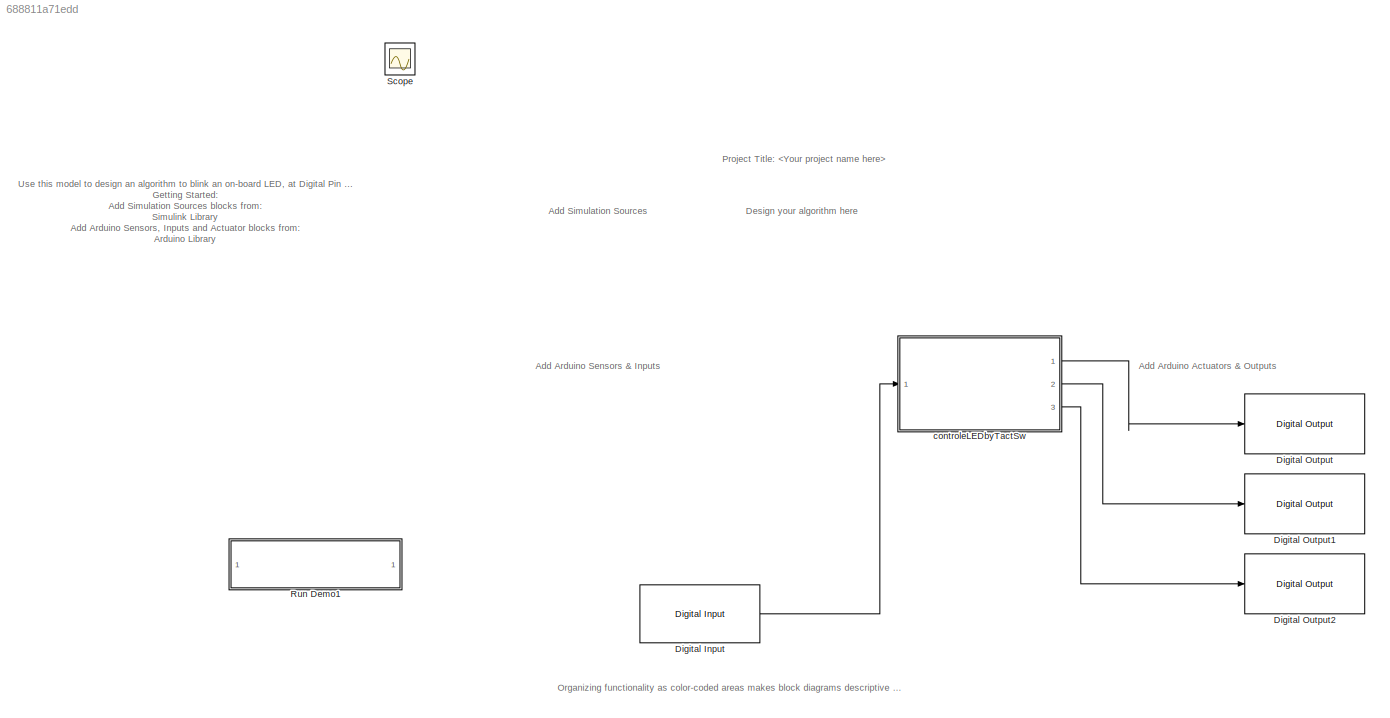
MODEL slx_688811a71edd
KIND model
CONFIG AbsTol = auto
CONFIG EnableMultiTasking = on
CONFIG FixedStep = auto
CONFIG MaxStep = auto
CONFIG MinStep = auto
CONFIG RelTol = 1e-3
CONFIG SampleTimeConstraint = Unconstrained
CONFIG SolverName = ode45
CONFIG StartTime = 0.0
CONFIG StopTime = 10.0
BLOCK [Reference] Digital Input  REF=arduinolib/Digital Input
  Commented = on
  Ports = [0, 1]
  SourceBlock = arduinolib/Digital Input
  SourceProductBaseCode = ARDUINO
  SourceType = Arduino Digital Input
BLOCK [Reference] Digital Output  REF=arduinolib/Digital Output
  Commented = on
  Ports = [1]
  SourceBlock = arduinolib/Digital Output
  SourceProductName = Simulink Support Package for Arduino Hardware
  SourceType = Arduino Digital Output
BLOCK [Reference] Digital Output1  REF=arduinolib/Digital Output
  Commented = on
  Ports = [1]
  SourceBlock = arduinolib/Digital Output
  SourceProductName = Simulink Support Package for Arduino Hardware
  SourceType = Arduino Digital Output
BLOCK [Reference] Digital Output2  REF=arduinolib/Digital Output
  Commented = on
  Ports = [1]
  SourceBlock = arduinolib/Digital Output
  SourceProductName = Simulink Support Package for Arduino Hardware
  SourceType = Arduino Digital Output
BLOCK [SubSystem] Run Demo1
  Description = Controls host-side RTDX processing.
  Ports = []
  RequestExecContextInheritance = off
  ShowPortLabels = none
  UserDataPersistent = on
BLOCK [Scope] Scope
  Floating = off
  IOType = viewer
  NumInputPorts = 1
  Ports = []
  ScopeSpecificationString = Simulink.scopes.TimeScopeBlockCfg('CurrentConfiguration', extmgr.ConfigurationSet(extmgr.Configuration('Core','General UI',true),extmgr.Configuration('Core','Source UI',true),extmgr.Configuration('Sources','WiredSimulink',true),extmgr.Configuration('Visuals','Time Domain',true,'SerializedDisplays',{struct('MinYLimReal','-0.125','MaxYLimReal','1.125','YLabelReal','','MinYLimMag','0.00000','MaxYLimM...<+1365ch>
BLOCK [SubSystem] controleLEDbyTactSw
  Ports = [1, 3]
  ReferencedSubsystem = controleLEDbyTactSw
  RequestExecContextInheritance = off
  TreatAsAtomicUnit = on
ANNOTATION (root): Use this model to design an algorithm to blink an on-board LED, at Digital Pin 13 on the Arduino Hardware. Getting Started: Add Simulation Sources blocks from: Simulink Library Add Arduino Sensors, Inputs and Actuator blocks from: Arduino Library Configure Arduino Hardware: Open Model Configuration Parameters dialog Under the Hardware Implementation option, select the desired Arduino hardware from...<+401ch>
ANNOTATION (root): Organizing functionality as color-coded areas makes block diagrams descriptive and helps to develop increasingly complex algorithms.
ANNOTATION (root): Add Arduino Actuators & Outputs
ANNOTATION (root): Add Arduino Sensors & Inputs
ANNOTATION (root): Add Simulation Sources
ANNOTATION (root): Design your algorithm here
ANNOTATION (root): Project Title:
LINE Digital Input:1 -> controleLEDbyTactSw:1
LINE controleLEDbyTactSw:1 -> Digital Output:1
LINE controleLEDbyTactSw:2 -> Digital Output1:1
LINE controleLEDbyTactSw:3 -> Digital Output2:1
